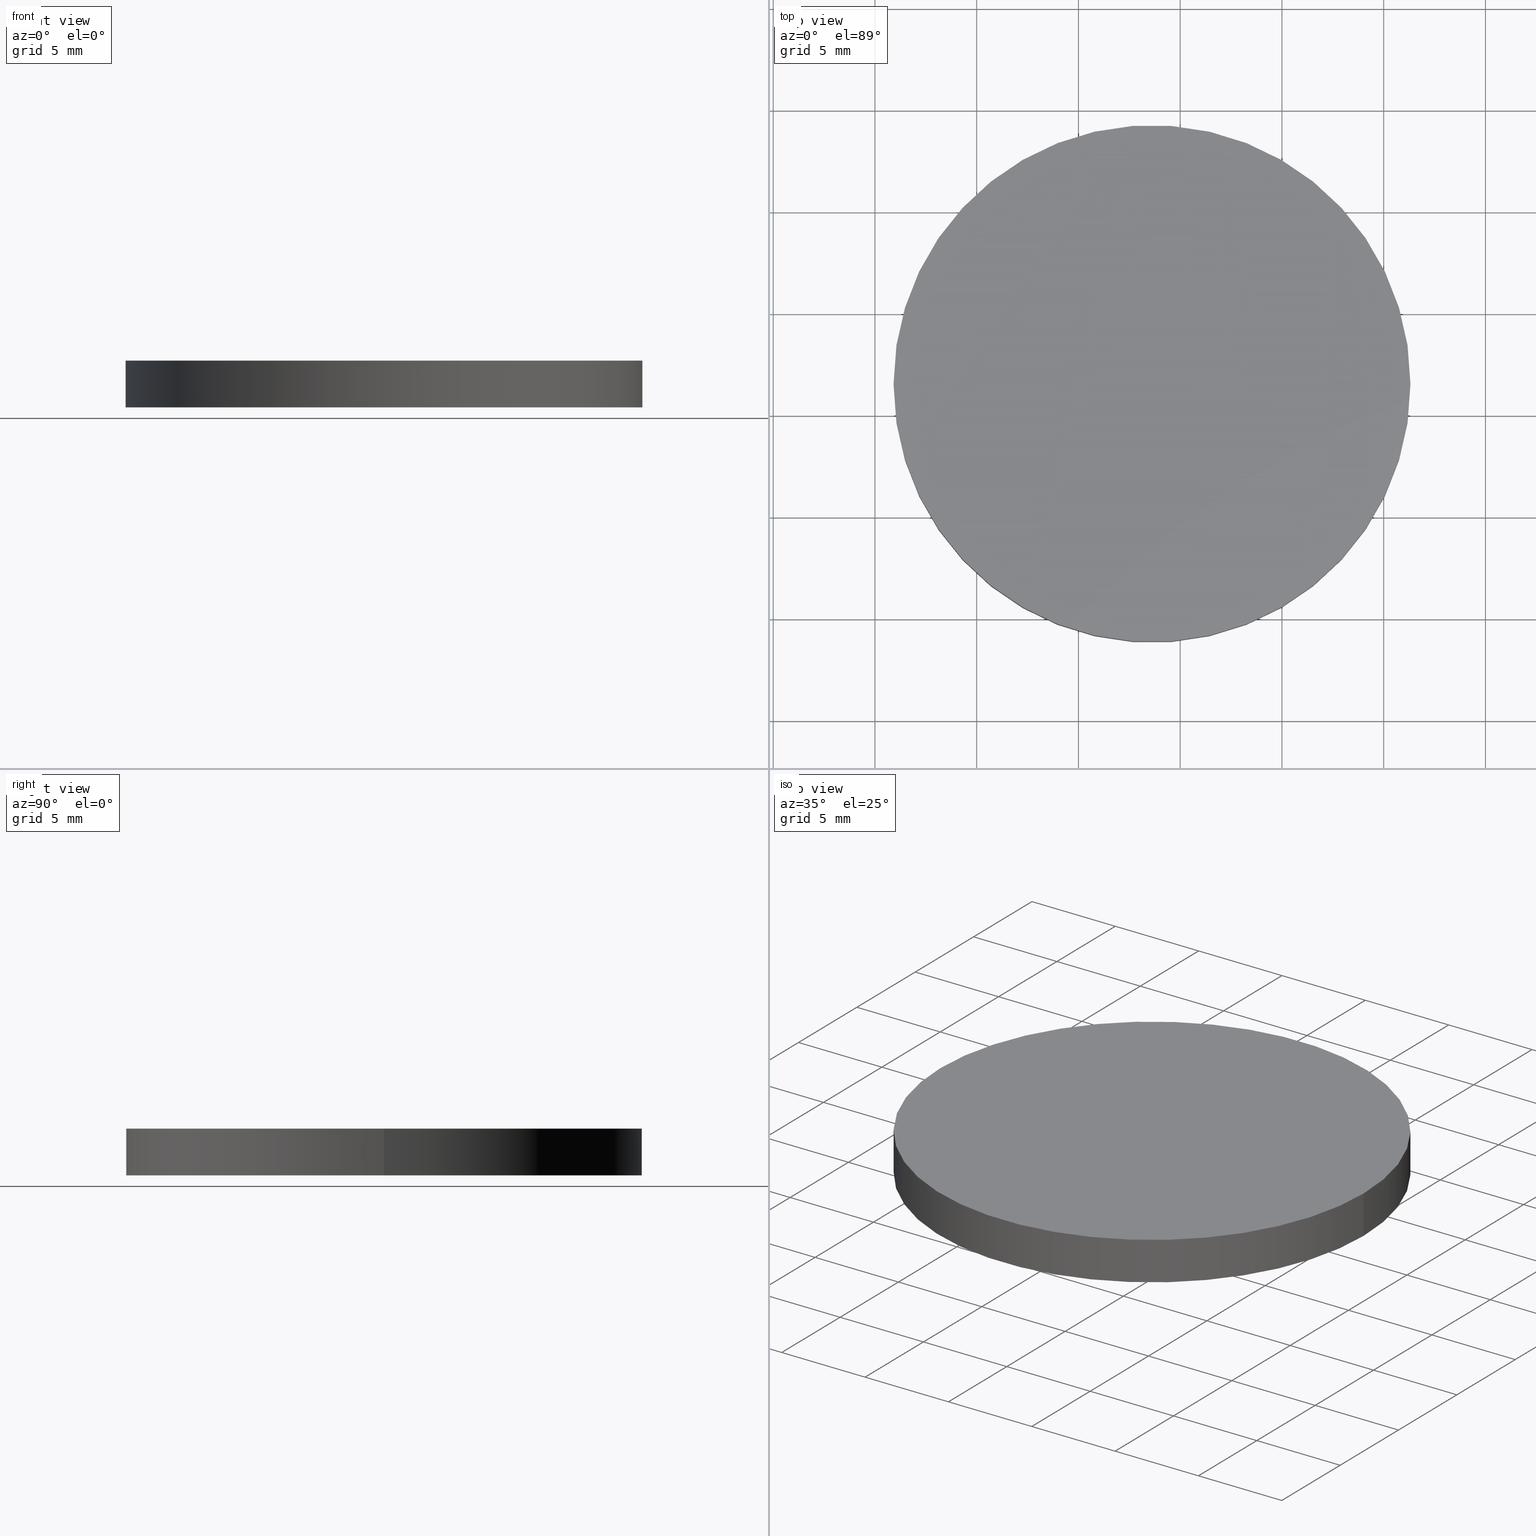
[diagram: canonical four-view strip — front | top / right | iso, engineering-drawing reading convention]
A machine part, canonical four-view strip (front | top / right | iso — engineering-drawing reading convention). The complete STEP part file that produces these views, byte-faithful:
ISO-10303-21;
HEADER;
FILE_DESCRIPTION (( 'STEP AP214' ),
    '1' );
FILE_NAME ('302519.STEP',
    '2019-08-13T06:19:39',
    ( '' ),
    ( '' ),
    'SwSTEP 2.0',
    'SolidWorks 2016',
    '' );
FILE_SCHEMA (( 'AUTOMOTIVE_DESIGN' ));
ENDSEC;

DATA;
#1 = CIRCLE ( 'NONE', #56, 12.70000000000000300 ) ;
#2 = EDGE_CURVE ( 'NONE', #26, #101, #76, .T. ) ;
#3 = PRESENTATION_STYLE_ASSIGNMENT (( #64 ) ) ;
#4 = PRESENTATION_STYLE_ASSIGNMENT (( #52 ) ) ;
#5 = CARTESIAN_POINT ( 'NONE',  ( 108.6149839422837000, 61.56324183452659300, 2.299999999999999800 ) ) ;
#6 = DIRECTION ( 'NONE',  ( 0.0000000000000000000, 0.0000000000000000000, 1.000000000000000000 ) ) ;
#7 = PLANE ( 'NONE',  #90 ) ;
#8 = DIRECTION ( 'NONE',  ( 1.000000000000000000, 0.0000000000000000000, -0.0000000000000000000 ) ) ;
#9 = DIRECTION ( 'NONE',  ( -0.0000000000000000000, -0.0000000000000000000, -1.000000000000000000 ) ) ;
#10 = UNCERTAINTY_MEASURE_WITH_UNIT (LENGTH_MEASURE( 1.000000000000000100E-005 ), #129, 'distance_accuracy_value', 'NONE');
#11 = EDGE_CURVE ( 'NONE', #127, #26, #135, .T. ) ;
#12 = ORIENTED_EDGE ( 'NONE', *, *, #134, .F. ) ;
#13 = COLOUR_RGB ( '',1.000000000000000000, 1.000000000000000000, 1.000000000000000000 ) ;
#14 = AXIS2_PLACEMENT_3D ( 'NONE', #38, #6, #82 ) ;
#15 = PRODUCT_DEFINITION ( 'δ֪', '', #75, #44 ) ;
#16 = CARTESIAN_POINT ( 'NONE',  ( 95.91498394228369800, 61.56324183452659300, 2.299999999999999800 ) ) ;
#17 = CARTESIAN_POINT ( 'NONE',  ( 108.6149839422837000, 61.56324183452659300, 2.299999999999999800 ) ) ;
#18 = PRODUCT ( '302519', '302519', '', ( #65 ) ) ;
#19 = DIRECTION ( 'NONE',  ( 0.0000000000000000000, 0.0000000000000000000, 1.000000000000000000 ) ) ;
#20 = DIRECTION ( 'NONE',  ( -0.0000000000000000000, -0.0000000000000000000, -1.000000000000000000 ) ) ;
#21 = COLOUR_RGB ( '',1.000000000000000000, 1.000000000000000000, 1.000000000000000000 ) ;
#22 = SURFACE_SIDE_STYLE ('',( #30 ) ) ;
#23 = VECTOR ( 'NONE', #109, 1000.000000000000000 ) ;
#24 =( GEOMETRIC_REPRESENTATION_CONTEXT ( 3 ) GLOBAL_UNCERTAINTY_ASSIGNED_CONTEXT ( ( #10 ) ) GLOBAL_UNIT_ASSIGNED_CONTEXT ( ( #129, #140, #43 ) ) REPRESENTATION_CONTEXT ( 'NONE', 'WORKASPACE' ) );
#25 = ORIENTED_EDGE ( 'NONE', *, *, #2, .T. ) ;
#26 = VERTEX_POINT ( 'NONE', #16 ) ;
#27 = CARTESIAN_POINT ( 'NONE',  ( 95.91498394228369800, 61.56324183452659300, 2.299999999999999800 ) ) ;
#28 = ADVANCED_FACE ( 'NONE', ( #62 ), #110, .F. ) ;
#29 = MECHANICAL_DESIGN_GEOMETRIC_PRESENTATION_REPRESENTATION (  '', ( #118 ), #24 ) ;
#30 = SURFACE_STYLE_FILL_AREA ( #115 ) ;
#31 = DIRECTION ( 'NONE',  ( 1.000000000000000000, 0.0000000000000000000, -0.0000000000000000000 ) ) ;
#32 = APPLICATION_PROTOCOL_DEFINITION ( 'draft international standard', 'automotive_design', 1998, #98 ) ;
#33 = AXIS2_PLACEMENT_3D ( 'NONE', #36, #19, #8 ) ;
#34 = CYLINDRICAL_SURFACE ( 'NONE', #69, 12.70000000000000300 ) ;
#35 = ADVANCED_FACE ( 'NONE', ( #97 ), #34, .T. ) ;
#36 = CARTESIAN_POINT ( 'NONE',  ( 108.6149839422837000, 61.56324183452659300, 0.0000000000000000000 ) ) ;
#37 = SURFACE_SIDE_STYLE ('',( #42 ) ) ;
#38 = CARTESIAN_POINT ( 'NONE',  ( 108.6149839422837000, 61.56324183452659300, 2.299999999999999800 ) ) ;
#39 = DIRECTION ( 'NONE',  ( 1.000000000000000000, 0.0000000000000000000, 0.0000000000000000000 ) ) ;
#40 = CLOSED_SHELL ( 'NONE', ( #58, #35, #80, #28 ) ) ;
#41 = CARTESIAN_POINT ( 'NONE',  ( 95.91498394228369800, 61.56324183452659300, 0.0000000000000000000 ) ) ;
#42 = SURFACE_STYLE_FILL_AREA ( #139 ) ;
#43 =( NAMED_UNIT ( * ) SI_UNIT ( $, .STERADIAN. ) SOLID_ANGLE_UNIT ( ) );
#44 = PRODUCT_DEFINITION_CONTEXT ( 'detailed design', #98, 'design' ) ;
#45 = EDGE_CURVE ( 'NONE', #127, #133, #49, .T. ) ;
#46 = EDGE_LOOP ( 'NONE', ( #107, #59 ) ) ;
#47 = MECHANICAL_DESIGN_GEOMETRIC_PRESENTATION_REPRESENTATION (  '', ( #84 ), #78 ) ;
#48 = AXIS2_PLACEMENT_3D ( 'NONE', #5, #124, #86 ) ;
#49 = LINE ( 'NONE', #73, #88 ) ;
#50 =( LENGTH_UNIT ( ) NAMED_UNIT ( * ) SI_UNIT ( .MILLI., .METRE. ) );
#51 = CARTESIAN_POINT ( 'NONE',  ( 108.6149839422837000, 61.56324183452659300, 2.299999999999999800 ) ) ;
#52 = SURFACE_STYLE_USAGE ( .BOTH. , #37 ) ;
#53 = FILL_AREA_STYLE_COLOUR ( '', #13 ) ;
#54 = AXIS2_PLACEMENT_3D ( 'NONE', #106, #112, #114 ) ;
#55 = ORIENTED_EDGE ( 'NONE', *, *, #128, .F. ) ;
#56 = AXIS2_PLACEMENT_3D ( 'NONE', #63, #83, #39 ) ;
#57 = EDGE_CURVE ( 'NONE', #101, #133, #1, .T. ) ;
#58 = ADVANCED_FACE ( 'NONE', ( #120 ), #138, .T. ) ;
#59 = ORIENTED_EDGE ( 'NONE', *, *, #11, .T. ) ;
#60 =( NAMED_UNIT ( * ) PLANE_ANGLE_UNIT ( ) SI_UNIT ( $, .RADIAN. ) );
#61 = DIRECTION ( 'NONE',  ( -0.0000000000000000000, -0.0000000000000000000, -1.000000000000000000 ) ) ;
#62 = FACE_OUTER_BOUND ( 'NONE', #111, .T. ) ;
#63 = CARTESIAN_POINT ( 'NONE',  ( 108.6149839422837000, 61.56324183452659300, 0.0000000000000000000 ) ) ;
#64 = SURFACE_STYLE_USAGE ( .BOTH. , #22 ) ;
#65 = PRODUCT_CONTEXT ( 'NONE', #96, 'mechanical' ) ;
#66 = MANIFOLD_SOLID_BREP ( '͹̨-����1', #40 ) ;
#67 = DIRECTION ( 'NONE',  ( 0.0000000000000000000, 0.0000000000000000000, 1.000000000000000000 ) ) ;
#68 = CIRCLE ( 'NONE', #14, 12.70000000000000300 ) ;
#69 = AXIS2_PLACEMENT_3D ( 'NONE', #51, #20, #122 ) ;
#70 = PRODUCT_RELATED_PRODUCT_CATEGORY ( 'part', '', ( #18 ) ) ;
#71 = EDGE_LOOP ( 'NONE', ( #103, #12, #25, #79 ) ) ;
#72 =( NAMED_UNIT ( * ) SI_UNIT ( $, .STERADIAN. ) SOLID_ANGLE_UNIT ( ) );
#73 = CARTESIAN_POINT ( 'NONE',  ( 121.3149839422837000, 61.56324183452659300, 2.299999999999999800 ) ) ;
#74 = DIRECTION ( 'NONE',  ( 1.000000000000000000, 0.0000000000000000000, 0.0000000000000000000 ) ) ;
#75 = PRODUCT_DEFINITION_FORMATION_WITH_SPECIFIED_SOURCE ( '�κ�', '', #18, .NOT_KNOWN. ) ;
#76 = LINE ( 'NONE', #27, #23 ) ;
#77 = ORIENTED_EDGE ( 'NONE', *, *, #11, .F. ) ;
#78 =( GEOMETRIC_REPRESENTATION_CONTEXT ( 3 ) GLOBAL_UNCERTAINTY_ASSIGNED_CONTEXT ( ( #121 ) ) GLOBAL_UNIT_ASSIGNED_CONTEXT ( ( #93, #137, #94 ) ) REPRESENTATION_CONTEXT ( 'NONE', 'WORKASPACE' ) );
#79 = ORIENTED_EDGE ( 'NONE', *, *, #57, .T. ) ;
#80 = ADVANCED_FACE ( 'NONE', ( #117 ), #7, .T. ) ;
#81 = CIRCLE ( 'NONE', #54, 12.70000000000000300 ) ;
#82 = DIRECTION ( 'NONE',  ( 1.000000000000000000, 0.0000000000000000000, 0.0000000000000000000 ) ) ;
#83 = DIRECTION ( 'NONE',  ( 0.0000000000000000000, 0.0000000000000000000, 1.000000000000000000 ) ) ;
#84 = STYLED_ITEM ( 'NONE', ( #4 ), #66 ) ;
#85 = CARTESIAN_POINT ( 'NONE',  ( 121.3149839422837000, 61.56324183452659300, 0.0000000000000000000 ) ) ;
#86 = DIRECTION ( 'NONE',  ( 1.000000000000000000, 0.0000000000000000000, 0.0000000000000000000 ) ) ;
#87 = APPLICATION_PROTOCOL_DEFINITION ( 'draft international standard', 'automotive_design', 1998, #96 ) ;
#88 = VECTOR ( 'NONE', #61, 1000.000000000000000 ) ;
#89 = ADVANCED_BREP_SHAPE_REPRESENTATION ( '302519', ( #66, #100 ), #104 ) ;
#90 = AXIS2_PLACEMENT_3D ( 'NONE', #17, #95, #31 ) ;
#91 = AXIS2_PLACEMENT_3D ( 'NONE', #113, #9, #136 ) ;
#92 = EDGE_LOOP ( 'NONE', ( #77, #105, #116, #130 ) ) ;
#93 =( LENGTH_UNIT ( ) NAMED_UNIT ( * ) SI_UNIT ( .MILLI., .METRE. ) );
#94 =( NAMED_UNIT ( * ) SI_UNIT ( $, .STERADIAN. ) SOLID_ANGLE_UNIT ( ) );
#95 = DIRECTION ( 'NONE',  ( 0.0000000000000000000, 0.0000000000000000000, 1.000000000000000000 ) ) ;
#96 = APPLICATION_CONTEXT ( 'automotive_design' ) ;
#97 = FACE_OUTER_BOUND ( 'NONE', #71, .T. ) ;
#98 = APPLICATION_CONTEXT ( 'automotive_design' ) ;
#99 = PRESENTATION_LAYER_ASSIGNMENT (  '', '', ( #84 ) ) ;
#100 = AXIS2_PLACEMENT_3D ( 'NONE', #126, #67, #74 ) ;
#101 = VERTEX_POINT ( 'NONE', #41 ) ;
#102 = UNCERTAINTY_MEASURE_WITH_UNIT (LENGTH_MEASURE( 1.000000000000000100E-005 ), #50, 'distance_accuracy_value', 'NONE');
#103 = ORIENTED_EDGE ( 'NONE', *, *, #45, .F. ) ;
#104 =( GEOMETRIC_REPRESENTATION_CONTEXT ( 3 ) GLOBAL_UNCERTAINTY_ASSIGNED_CONTEXT ( ( #102 ) ) GLOBAL_UNIT_ASSIGNED_CONTEXT ( ( #50, #60, #72 ) ) REPRESENTATION_CONTEXT ( 'NONE', 'WORKASPACE' ) );
#105 = ORIENTED_EDGE ( 'NONE', *, *, #45, .T. ) ;
#106 = CARTESIAN_POINT ( 'NONE',  ( 108.6149839422837000, 61.56324183452659300, 0.0000000000000000000 ) ) ;
#107 = ORIENTED_EDGE ( 'NONE', *, *, #134, .T. ) ;
#108 = PRESENTATION_LAYER_ASSIGNMENT (  '', '', ( #118 ) ) ;
#109 = DIRECTION ( 'NONE',  ( -0.0000000000000000000, -0.0000000000000000000, -1.000000000000000000 ) ) ;
#110 = PLANE ( 'NONE',  #33 ) ;
#111 = EDGE_LOOP ( 'NONE', ( #131, #55 ) ) ;
#112 = DIRECTION ( 'NONE',  ( 0.0000000000000000000, 0.0000000000000000000, 1.000000000000000000 ) ) ;
#113 = CARTESIAN_POINT ( 'NONE',  ( 108.6149839422837000, 61.56324183452659300, 2.299999999999999800 ) ) ;
#114 = DIRECTION ( 'NONE',  ( 1.000000000000000000, 0.0000000000000000000, 0.0000000000000000000 ) ) ;
#115 = FILL_AREA_STYLE ('',( #53 ) ) ;
#116 = ORIENTED_EDGE ( 'NONE', *, *, #128, .T. ) ;
#117 = FACE_OUTER_BOUND ( 'NONE', #46, .T. ) ;
#118 = STYLED_ITEM ( 'NONE', ( #3 ), #89 ) ;
#119 = PRODUCT_DEFINITION_SHAPE ( 'NONE', 'NONE',  #15 ) ;
#120 = FACE_OUTER_BOUND ( 'NONE', #92, .T. ) ;
#121 = UNCERTAINTY_MEASURE_WITH_UNIT (LENGTH_MEASURE( 1.000000000000000100E-005 ), #93, 'distance_accuracy_value', 'NONE');
#122 = DIRECTION ( 'NONE',  ( -1.000000000000000000, 0.0000000000000000000, 0.0000000000000000000 ) ) ;
#123 = FILL_AREA_STYLE_COLOUR ( '', #21 ) ;
#124 = DIRECTION ( 'NONE',  ( 0.0000000000000000000, 0.0000000000000000000, 1.000000000000000000 ) ) ;
#125 = CARTESIAN_POINT ( 'NONE',  ( 121.3149839422837000, 61.56324183452659300, 2.299999999999999800 ) ) ;
#126 = CARTESIAN_POINT ( 'NONE',  ( 0.0000000000000000000, 0.0000000000000000000, 0.0000000000000000000 ) ) ;
#127 = VERTEX_POINT ( 'NONE', #125 ) ;
#128 = EDGE_CURVE ( 'NONE', #133, #101, #81, .T. ) ;
#129 =( LENGTH_UNIT ( ) NAMED_UNIT ( * ) SI_UNIT ( .MILLI., .METRE. ) );
#130 = ORIENTED_EDGE ( 'NONE', *, *, #2, .F. ) ;
#131 = ORIENTED_EDGE ( 'NONE', *, *, #57, .F. ) ;
#132 = SHAPE_DEFINITION_REPRESENTATION ( #119, #89 ) ;
#133 = VERTEX_POINT ( 'NONE', #85 ) ;
#134 = EDGE_CURVE ( 'NONE', #26, #127, #68, .T. ) ;
#135 = CIRCLE ( 'NONE', #48, 12.70000000000000300 ) ;
#136 = DIRECTION ( 'NONE',  ( -1.000000000000000000, 0.0000000000000000000, 0.0000000000000000000 ) ) ;
#137 =( NAMED_UNIT ( * ) PLANE_ANGLE_UNIT ( ) SI_UNIT ( $, .RADIAN. ) );
#138 = CYLINDRICAL_SURFACE ( 'NONE', #91, 12.70000000000000300 ) ;
#139 = FILL_AREA_STYLE ('',( #123 ) ) ;
#140 =( NAMED_UNIT ( * ) PLANE_ANGLE_UNIT ( ) SI_UNIT ( $, .RADIAN. ) );
ENDSEC;
END-ISO-10303-21;
